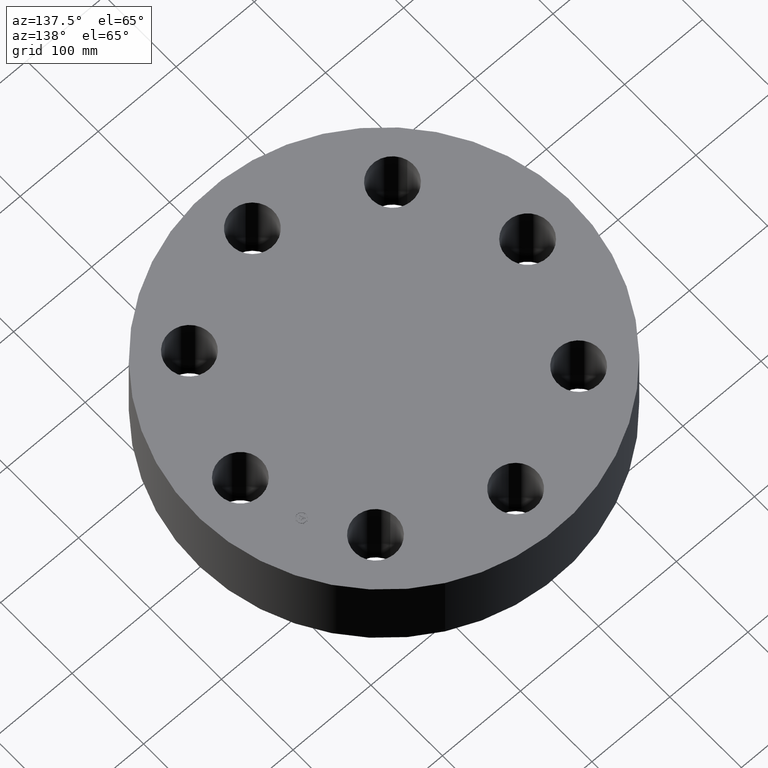
[diagram: clean part render]
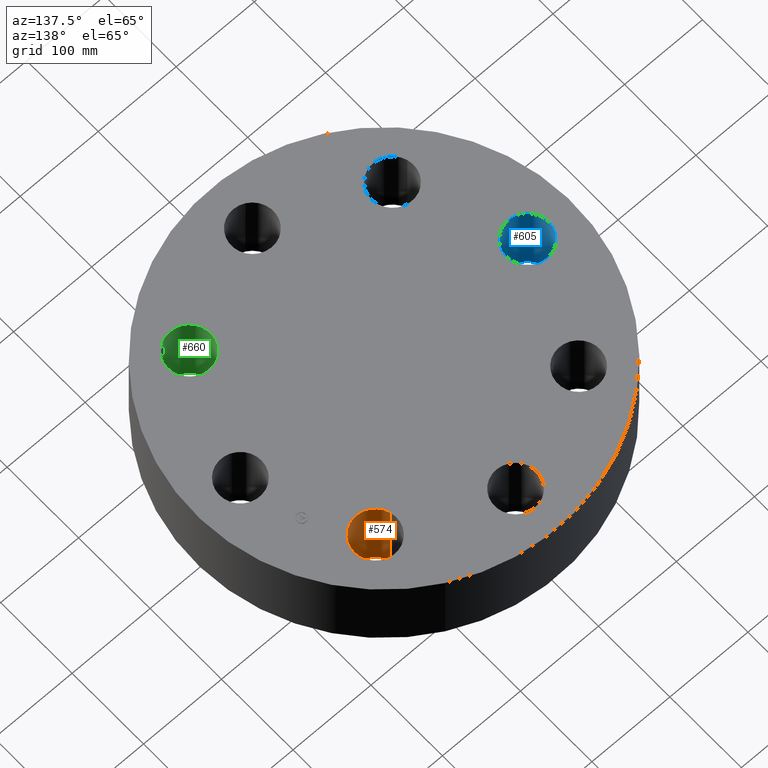
[diagram: same view with three faces highlighted in distinct colors, each labeled with its STEP entity id]
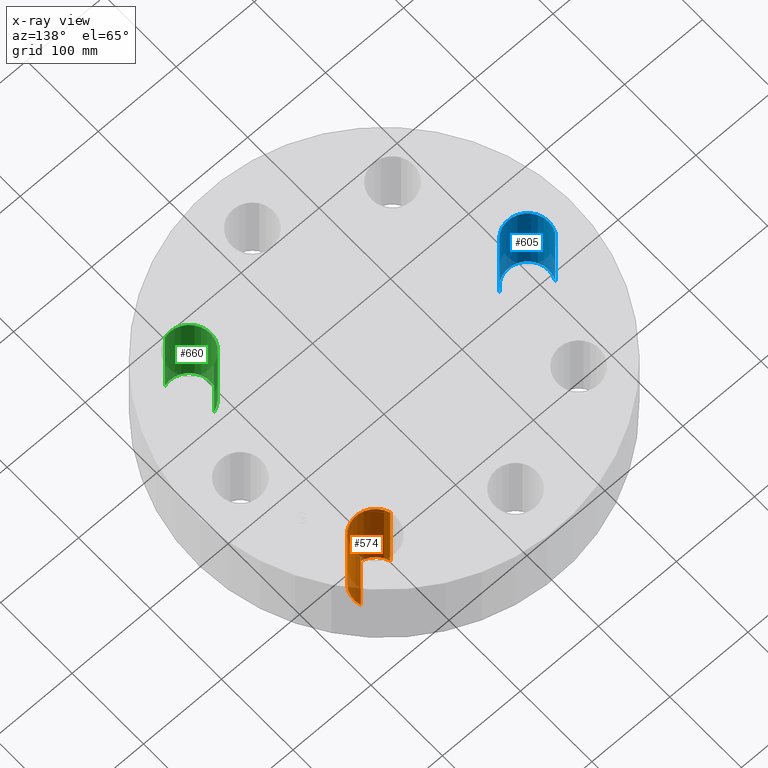
[diagram: x-ray of the same camera — body ghosted, the three highlighted faces saturated]
A machine part, auxiliary view with three faces highlighted in distinct colors.
The next image is the same camera in x-ray (body ghosted, the three faces saturated) — at least one of them is partly hidden behind the body in this view.
Their STEP definitions:

[orange] entity #574 — the highlighted cylindrical surface (edge-blend (fillet) strip) has radius 26.924 mm, axis along (0, 0, -1).
#352=AXIS2_PLACEMENT_3D('Circle Axis2P3D',#350,#351,$) ;
#535=AXIS2_PLACEMENT_3D('Cylinder Axis2P3D',#532,#533,#534) ;
#565=AXIS2_PLACEMENT_3D('Circle Axis2P3D',#563,#564,$) ;
#345=CARTESIAN_POINT('Vertex',(4.10940155584,4.82809226061,0.)) ;
#347=CARTESIAN_POINT('Vertex',(6.14364677141,5.42495606664,0.)) ;
#350=CARTESIAN_POINT('Axis2P3D Location',(5.12652416362,5.12652416362,0.)) ;
#532=CARTESIAN_POINT('Axis2P3D Location',(5.12652416362,5.12652416362,4.24606299214)) ;
#537=CARTESIAN_POINT('Line Origine',(4.10940155584,4.82809226061,2.12500000001)) ;
#541=CARTESIAN_POINT('Vertex',(4.10940155584,4.82809226061,4.25000000002)) ;
#544=CARTESIAN_POINT('Line Origine',(6.14364677141,5.42495606664,2.12500000001)) ;
#548=CARTESIAN_POINT('Vertex',(6.14364677141,5.42495606664,4.25000000002)) ;
#563=CARTESIAN_POINT('Axis2P3D Location',(5.12652416362,5.12652416362,4.25000000002)) ;
#351=DIRECTION('Axis2P3D Direction',(0.,0.,-0.0393700787402)) ;
#533=DIRECTION('Axis2P3D Direction',(0.,0.,-0.0393700787402)) ;
#534=DIRECTION('Axis2P3D XDirection',(0.0377775444876,0.0110842335096,0.)) ;
#538=DIRECTION('Vector Direction',(0.,0.,-0.0393700787402)) ;
#545=DIRECTION('Vector Direction',(0.,0.,-0.0393700787402)) ;
#564=DIRECTION('Axis2P3D Direction',(0.,0.,-0.0393700787402)) ;
#539=VECTOR('Line Direction',#538,0.0393700787402) ;
#546=VECTOR('Line Direction',#545,0.0393700787402) ;
#569=ORIENTED_EDGE('',*,*,#550,.F.) ;
#570=ORIENTED_EDGE('',*,*,#354,.T.) ;
#571=ORIENTED_EDGE('',*,*,#543,.T.) ;
#572=ORIENTED_EDGE('',*,*,#567,.F.) ;
#574=ADVANCED_FACE('PartBody',(#573),#536,.F.) ;
#353=CIRCLE('generated circle',#352,1.06) ;
#566=CIRCLE('generated circle',#565,1.06) ;
#536=CYLINDRICAL_SURFACE('generated cylinder',#535,1.06) ;
#354=EDGE_CURVE('',#348,#346,#353,.T.) ;
#543=EDGE_CURVE('',#346,#542,#540,.F.) ;
#550=EDGE_CURVE('',#348,#549,#547,.F.) ;
#567=EDGE_CURVE('',#549,#542,#566,.T.) ;
#568=EDGE_LOOP('',(#569,#570,#571,#572)) ;
#573=FACE_OUTER_BOUND('',#568,.T.) ;
#540=LINE('Line',#537,#539) ;
#547=LINE('Line',#544,#546) ;
#346=VERTEX_POINT('',#345) ;
#348=VERTEX_POINT('',#347) ;
#542=VERTEX_POINT('',#541) ;
#549=VERTEX_POINT('',#548) ;

[blue] entity #605 — the highlighted cylindrical surface (edge-blend (fillet) strip) has radius 26.924 mm, axis along (-0, 0, -1).
#289=AXIS2_PLACEMENT_3D('Circle Axis2P3D',#287,#288,$) ;
#578=AXIS2_PLACEMENT_3D('Cylinder Axis2P3D',#575,#576,#577) ;
#596=AXIS2_PLACEMENT_3D('Circle Axis2P3D',#594,#595,$) ;
#287=CARTESIAN_POINT('Axis2P3D Location',(-7.25000000003,-5.59482469102E-016,0.)) ;
#291=CARTESIAN_POINT('Vertex',(-6.31976248442,-0.508191070922,0.)) ;
#293=CARTESIAN_POINT('Vertex',(-8.18023751564,0.508191070922,0.)) ;
#575=CARTESIAN_POINT('Axis2P3D Location',(-7.25000000003,-8.87868929385E-016,4.24606299214)) ;
#580=CARTESIAN_POINT('Line Origine',(-6.31976248442,-0.508191070922,2.12500000001)) ;
#584=CARTESIAN_POINT('Vertex',(-6.31976248442,-0.508191070922,4.25000000002)) ;
#587=CARTESIAN_POINT('Line Origine',(-8.18023751564,0.508191070922,2.12500000001)) ;
#591=CARTESIAN_POINT('Vertex',(-8.18023751564,0.508191070922,4.25000000002)) ;
#594=CARTESIAN_POINT('Axis2P3D Location',(-7.25000000003,-8.87868929385E-016,4.25000000002)) ;
#288=DIRECTION('Axis2P3D Direction',(0.,0.,-0.0393700787402)) ;
#576=DIRECTION('Axis2P3D Direction',(-0.,0.,-0.0393700787402)) ;
#577=DIRECTION('Axis2P3D XDirection',(-0.0345504945626,0.0188750212049,0.)) ;
#581=DIRECTION('Vector Direction',(0.,0.,-0.0393700787402)) ;
#588=DIRECTION('Vector Direction',(0.,0.,-0.0393700787402)) ;
#595=DIRECTION('Axis2P3D Direction',(-0.,0.,-0.0393700787402)) ;
#582=VECTOR('Line Direction',#581,0.0393700787402) ;
#589=VECTOR('Line Direction',#588,0.0393700787402) ;
#600=ORIENTED_EDGE('',*,*,#586,.F.) ;
#601=ORIENTED_EDGE('',*,*,#295,.T.) ;
#602=ORIENTED_EDGE('',*,*,#593,.T.) ;
#603=ORIENTED_EDGE('',*,*,#598,.F.) ;
#605=ADVANCED_FACE('PartBody',(#604),#579,.F.) ;
#290=CIRCLE('generated circle',#289,1.06) ;
#597=CIRCLE('generated circle',#596,1.06) ;
#579=CYLINDRICAL_SURFACE('generated cylinder',#578,1.06) ;
#295=EDGE_CURVE('',#292,#294,#290,.T.) ;
#586=EDGE_CURVE('',#292,#585,#583,.F.) ;
#593=EDGE_CURVE('',#294,#592,#590,.F.) ;
#598=EDGE_CURVE('',#585,#592,#597,.T.) ;
#599=EDGE_LOOP('',(#600,#601,#602,#603)) ;
#604=FACE_OUTER_BOUND('',#599,.T.) ;
#583=LINE('Line',#580,#582) ;
#590=LINE('Line',#587,#589) ;
#292=VERTEX_POINT('',#291) ;
#294=VERTEX_POINT('',#293) ;
#585=VERTEX_POINT('',#584) ;
#592=VERTEX_POINT('',#591) ;

[green] entity #660 — the highlighted cylindrical surface (edge-blend (fillet) strip) has radius 26.924 mm, axis along (0, -0, -1).
#244=AXIS2_PLACEMENT_3D('Circle Axis2P3D',#242,#243,$) ;
#621=AXIS2_PLACEMENT_3D('Cylinder Axis2P3D',#618,#619,#620) ;
#651=AXIS2_PLACEMENT_3D('Circle Axis2P3D',#649,#650,$) ;
#237=CARTESIAN_POINT('Vertex',(4.82809226061,-4.10940155584,0.)) ;
#239=CARTESIAN_POINT('Vertex',(5.42495606664,-6.14364677141,0.)) ;
#242=CARTESIAN_POINT('Axis2P3D Location',(5.12652416362,-5.12652416362,0.)) ;
#618=CARTESIAN_POINT('Axis2P3D Location',(5.12652416362,-5.12652416362,4.24606299214)) ;
#623=CARTESIAN_POINT('Line Origine',(4.82809226061,-4.10940155584,2.12500000001)) ;
#627=CARTESIAN_POINT('Vertex',(4.82809226061,-4.10940155584,4.25000000002)) ;
#630=CARTESIAN_POINT('Line Origine',(5.42495606664,-6.14364677141,2.12500000001)) ;
#634=CARTESIAN_POINT('Vertex',(5.42495606664,-6.14364677141,4.25000000002)) ;
#649=CARTESIAN_POINT('Axis2P3D Location',(5.12652416362,-5.12652416362,4.25000000002)) ;
#243=DIRECTION('Axis2P3D Direction',(0.,0.,-0.0393700787402)) ;
#619=DIRECTION('Axis2P3D Direction',(0.,-0.,-0.0393700787402)) ;
#620=DIRECTION('Axis2P3D XDirection',(0.0110842335096,-0.0377775444876,0.)) ;
#624=DIRECTION('Vector Direction',(0.,0.,-0.0393700787402)) ;
#631=DIRECTION('Vector Direction',(0.,0.,-0.0393700787402)) ;
#650=DIRECTION('Axis2P3D Direction',(0.,-0.,-0.0393700787402)) ;
#625=VECTOR('Line Direction',#624,0.0393700787402) ;
#632=VECTOR('Line Direction',#631,0.0393700787402) ;
#655=ORIENTED_EDGE('',*,*,#636,.F.) ;
#656=ORIENTED_EDGE('',*,*,#246,.T.) ;
#657=ORIENTED_EDGE('',*,*,#629,.T.) ;
#658=ORIENTED_EDGE('',*,*,#653,.F.) ;
#660=ADVANCED_FACE('PartBody',(#659),#622,.F.) ;
#245=CIRCLE('generated circle',#244,1.06) ;
#652=CIRCLE('generated circle',#651,1.06) ;
#622=CYLINDRICAL_SURFACE('generated cylinder',#621,1.06) ;
#246=EDGE_CURVE('',#240,#238,#245,.T.) ;
#629=EDGE_CURVE('',#238,#628,#626,.F.) ;
#636=EDGE_CURVE('',#240,#635,#633,.F.) ;
#653=EDGE_CURVE('',#635,#628,#652,.T.) ;
#654=EDGE_LOOP('',(#655,#656,#657,#658)) ;
#659=FACE_OUTER_BOUND('',#654,.T.) ;
#626=LINE('Line',#623,#625) ;
#633=LINE('Line',#630,#632) ;
#238=VERTEX_POINT('',#237) ;
#240=VERTEX_POINT('',#239) ;
#628=VERTEX_POINT('',#627) ;
#635=VERTEX_POINT('',#634) ;